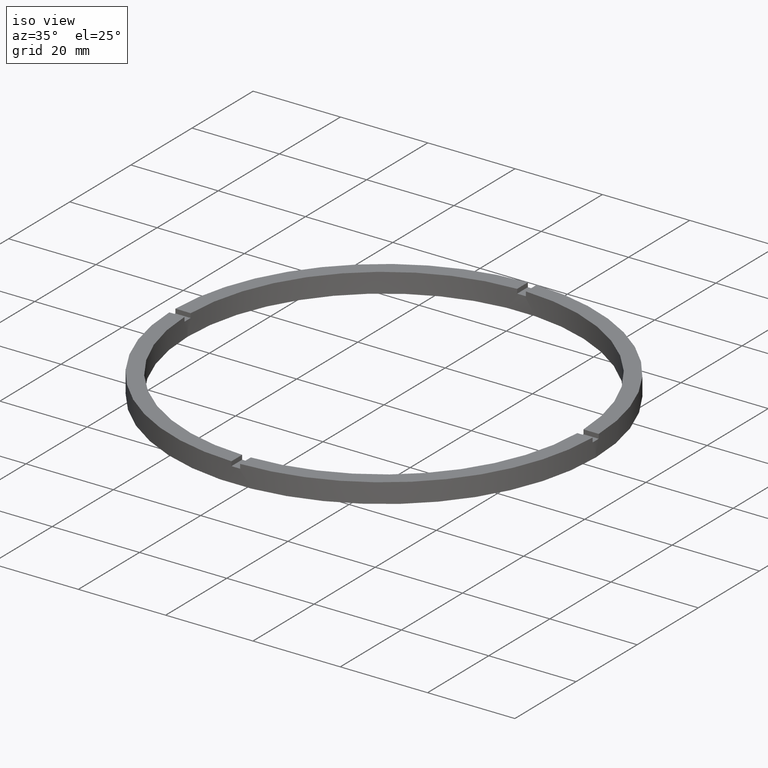
[diagram: clean part render]
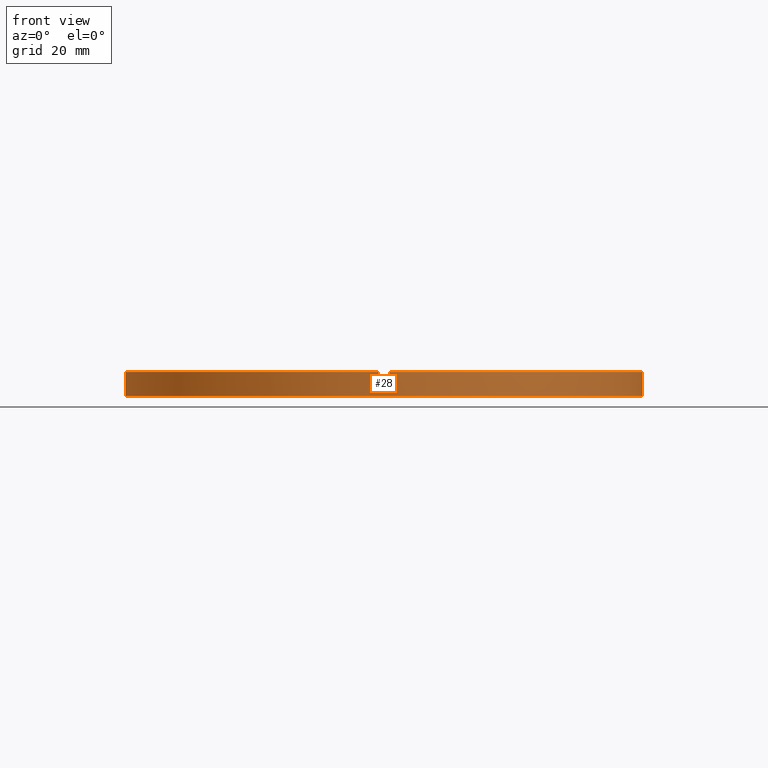
[diagram: tour spotlight — one face highlighted and labeled with its STEP entity id]
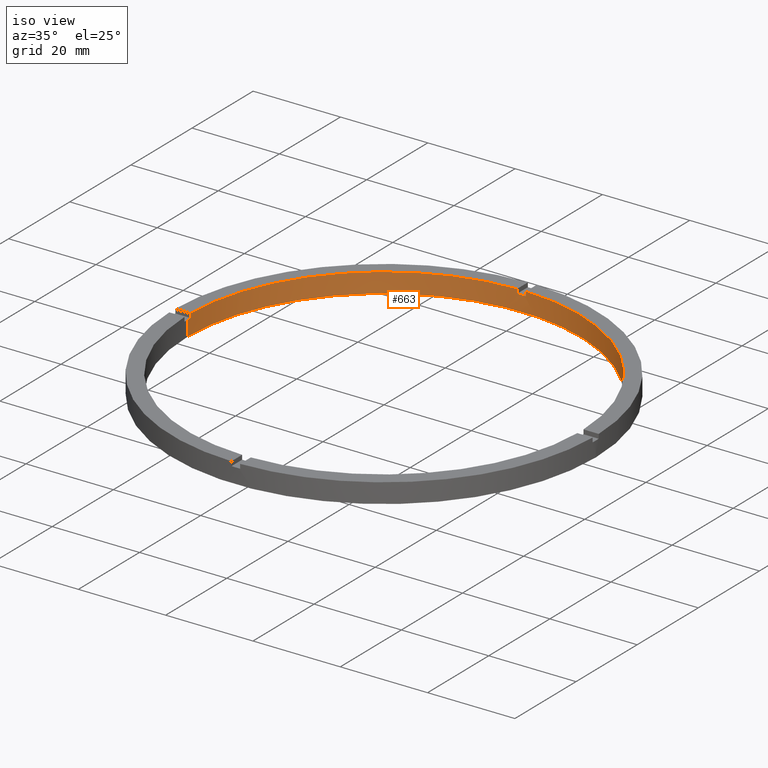
[diagram: tour spotlight — one face highlighted and labeled with its STEP entity id]
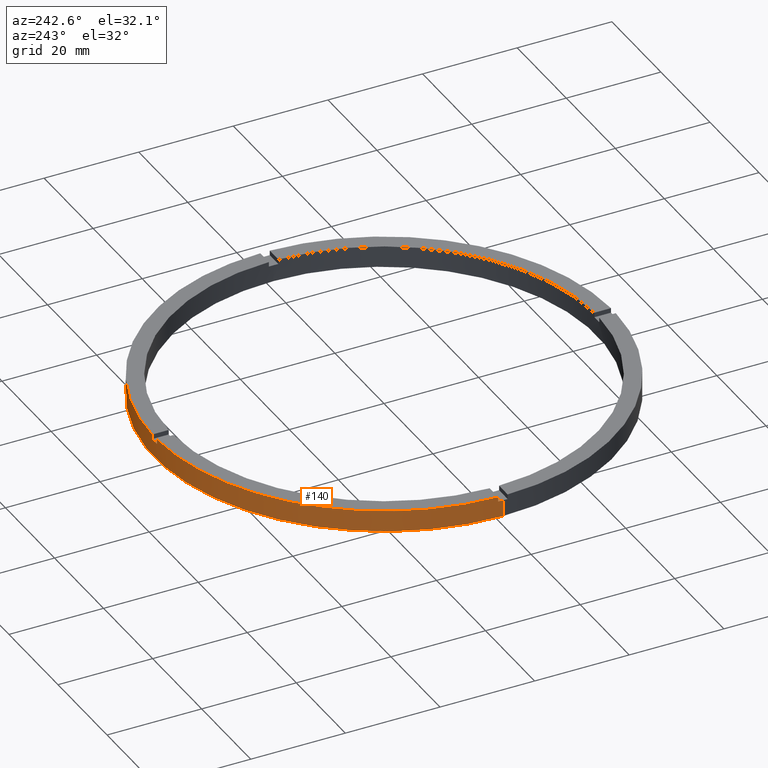
[diagram: tour spotlight — one face highlighted and labeled with its STEP entity id]
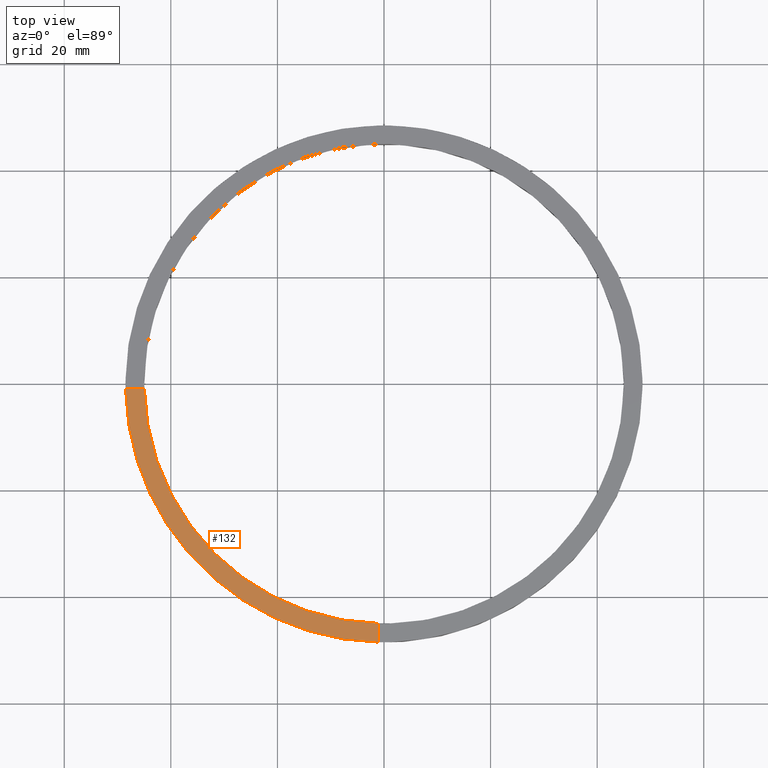
[diagram: tour spotlight — one face highlighted and labeled with its STEP entity id]
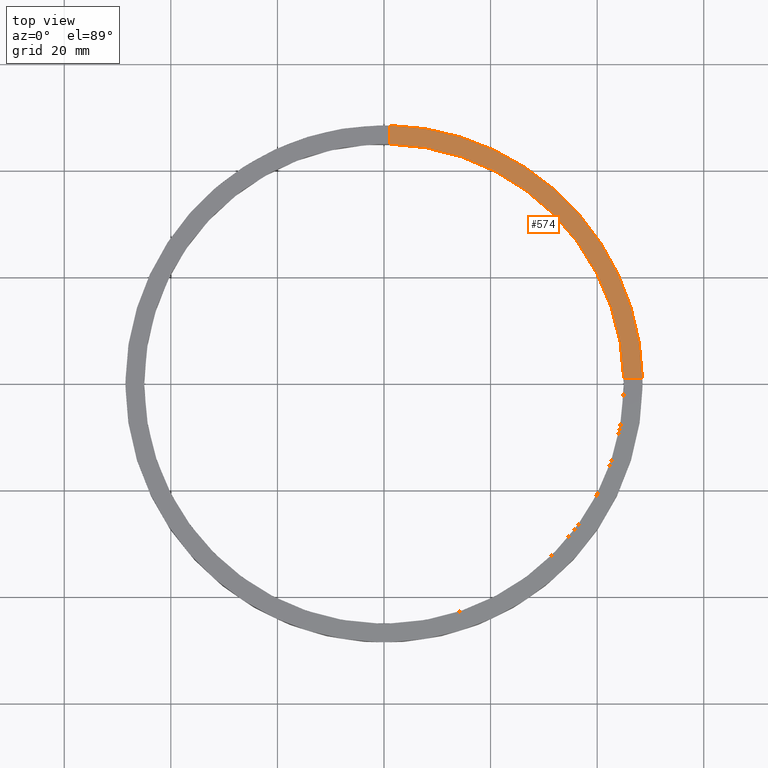
[diagram: tour spotlight — one face highlighted and labeled with its STEP entity id]
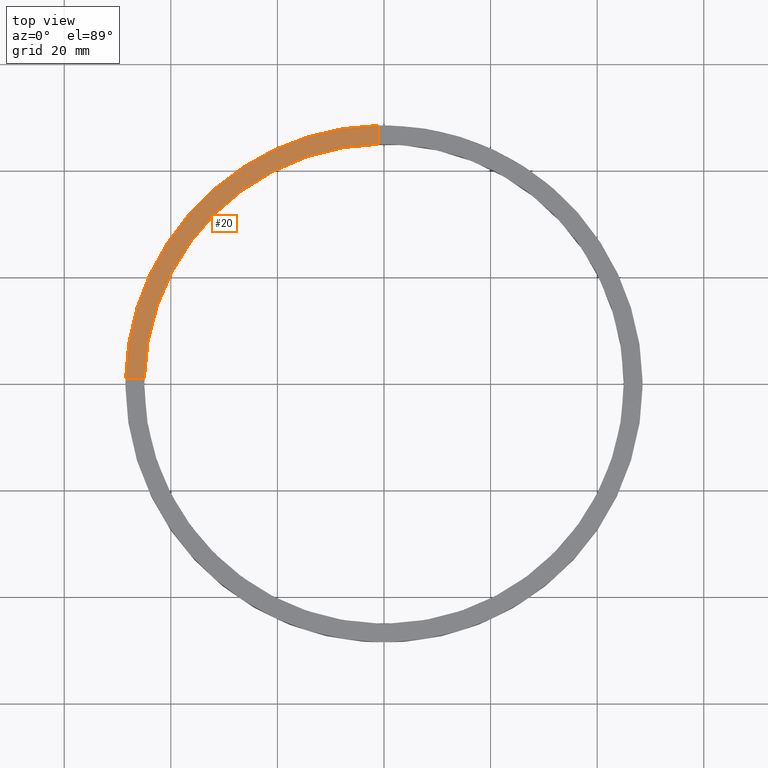
[diagram: tour spotlight — one face highlighted and labeled with its STEP entity id]
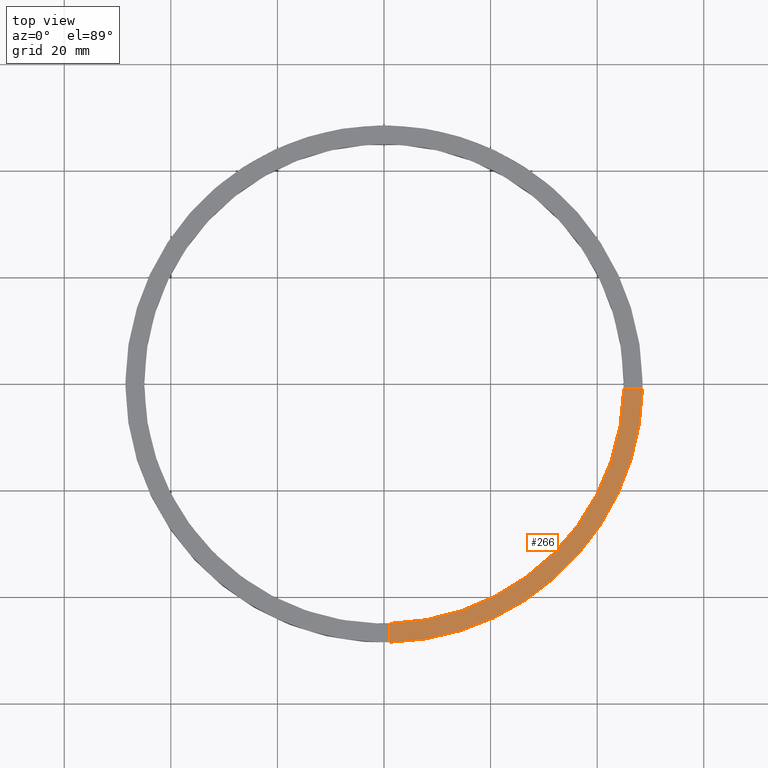
[diagram: tour spotlight — one face highlighted and labeled with its STEP entity id]
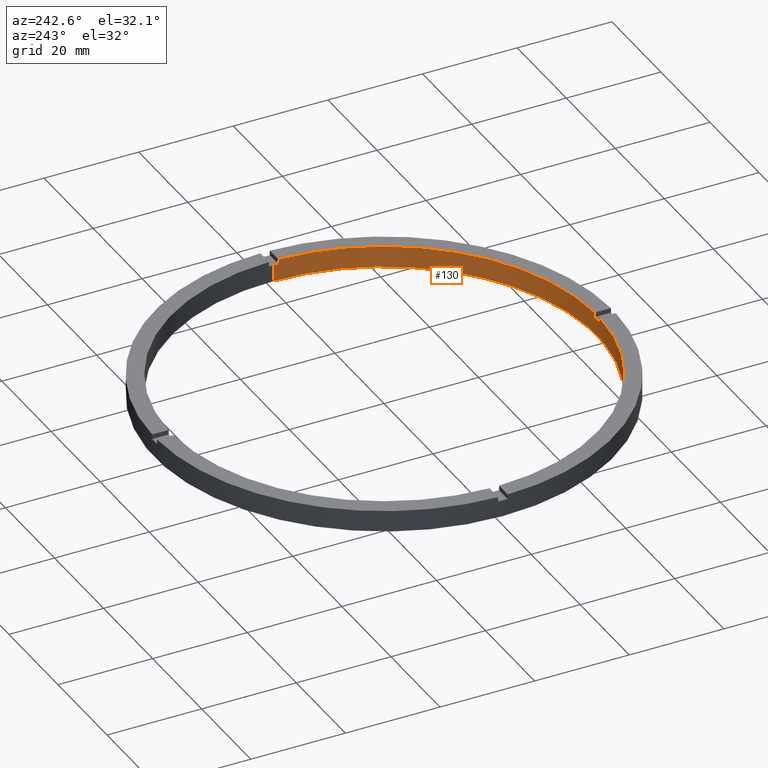
[diagram: tour spotlight — one face highlighted and labeled with its STEP entity id]
A machine part: a face-by-face anatomy tour. The part has 21 B-rep faces; the first image is the clean iso view, then the 8 largest visible faces are spotlighted one at a time (largest first), each with its STEP entity span.

Face 1 — front view, entity #28. In plain terms, the highlighted cylindrical surface (partial cylindrical patch) has radius 48.5 mm, axis along (-0, -0, -1).
Definition (entity closure, byte-faithful):
#24 = DIRECTION ( 'NONE',  ( 1.000000000000000000, 0.000000000000000000, 0.000000000000000000 ) ) ;
#28 = ADVANCED_FACE ( 'NONE', ( #464 ), #216, .T. ) ;
#30 = VERTEX_POINT ( 'NONE', #587 ) ;
#35 = CARTESIAN_POINT ( 'NONE',  ( 0.000000000000000000, 0.000000000000000000, 4.500000000000000000 ) ) ;
#40 = VERTEX_POINT ( 'NONE', #548 ) ;
#44 = EDGE_CURVE ( 'NONE', #721, #737, #728, .T. ) ;
#45 = CARTESIAN_POINT ( 'NONE',  ( 0.000000000000000000, 0.000000000000000000, 0.000000000000000000 ) ) ;
#52 = CARTESIAN_POINT ( 'NONE',  ( -48.50000000000000000, 0.000000000000000000, 4.500000000000000000 ) ) ;
#54 = CARTESIAN_POINT ( 'NONE',  ( 0.000000000000000000, 0.000000000000000000, 4.500000000000000000 ) ) ;
#62 = DIRECTION ( 'NONE',  ( 1.000000000000000000, 0.000000000000000000, 0.000000000000000000 ) ) ;
#81 = LINE ( 'NONE', #235, #614 ) ;
#89 = VECTOR ( 'NONE', #585, 1000.000000000000000 ) ;
#92 = LINE ( 'NONE', #394, #624 ) ;
#99 = CIRCLE ( 'NONE', #386, 48.50000000000000000 ) ;
#105 = CARTESIAN_POINT ( 'NONE',  ( -48.50000000000000000, 0.000000000000000000, 3.499999999999999556 ) ) ;
#117 = EDGE_CURVE ( 'NONE', #721, #170, #244, .T. ) ;
#127 = AXIS2_PLACEMENT_3D ( 'NONE', #45, #724, #24 ) ;
#128 = EDGE_CURVE ( 'NONE', #440, #30, #758, .T. ) ;
#131 = EDGE_CURVE ( 'NONE', #40, #197, #508, .T. ) ;
#134 = DIRECTION ( 'NONE',  ( 0.000000000000000000, 0.000000000000000000, 1.000000000000000000 ) ) ;
#145 = CARTESIAN_POINT ( 'NONE',  ( -48.48968962573384545, -1.000000000000031086, 3.499999999999999556 ) ) ;
#166 = CARTESIAN_POINT ( 'NONE',  ( 48.48968962573384545, -1.000000000000155431, 3.499999999999999556 ) ) ;
#170 = VERTEX_POINT ( 'NONE', #145 ) ;
#171 = CARTESIAN_POINT ( 'NONE',  ( 48.48968962573384545, -1.000000000000155431, 4.500000000000000000 ) ) ;
#197 = VERTEX_POINT ( 'NONE', #603 ) ;
#199 = EDGE_LOOP ( 'NONE', ( #284, #441, #268, #505, #736, #231, #697, #282, #512, #220, #701, #705 ) ) ;
#212 = DIRECTION ( 'NONE',  ( 0.000000000000000000, 0.000000000000000000, 1.000000000000000000 ) ) ;
#216 = CYLINDRICAL_SURFACE ( 'NONE', #281, 48.50000000000000000 ) ;
#220 = ORIENTED_EDGE ( 'NONE', *, *, #117, .F. ) ;
#222 = VECTOR ( 'NONE', #635, 1000.000000000000000 ) ;
#226 = DIRECTION ( 'NONE',  ( 1.000000000000000000, 0.000000000000000000, 0.000000000000000000 ) ) ;
#231 = ORIENTED_EDGE ( 'NONE', *, *, #131, .F. ) ;
#235 = CARTESIAN_POINT ( 'NONE',  ( -48.48968962573384545, -1.000000000000031086, 4.500000000000000000 ) ) ;
#243 = DIRECTION ( 'NONE',  ( -0.000000000000000000, -0.000000000000000000, -1.000000000000000000 ) ) ;
#244 = CIRCLE ( 'NONE', #661, 48.50000000000000000 ) ;
#263 = VECTOR ( 'NONE', #377, 1000.000000000000000 ) ;
#267 = LINE ( 'NONE', #275, #500 ) ;
#268 = ORIENTED_EDGE ( 'NONE', *, *, #327, .T. ) ;
#273 = AXIS2_PLACEMENT_3D ( 'NONE', #755, #467, #780 ) ;
#275 = CARTESIAN_POINT ( 'NONE',  ( 0.9999999999998427924, -48.48968962573384545, 4.500000000000000000 ) ) ;
#281 = AXIS2_PLACEMENT_3D ( 'NONE', #35, #320, #412 ) ;
#282 = ORIENTED_EDGE ( 'NONE', *, *, #128, .F. ) ;
#284 = ORIENTED_EDGE ( 'NONE', *, *, #623, .F. ) ;
#305 = CARTESIAN_POINT ( 'NONE',  ( 0.000000000000000000, 0.000000000000000000, 3.499999999999999556 ) ) ;
#308 = DIRECTION ( 'NONE',  ( -0.000000000000000000, -0.000000000000000000, -1.000000000000000000 ) ) ;
#312 = AXIS2_PLACEMENT_3D ( 'NONE', #431, #752, #62 ) ;
#314 = CARTESIAN_POINT ( 'NONE',  ( -48.48968962573384545, -1.000000000000031086, 4.500000000000000000 ) ) ;
#320 = DIRECTION ( 'NONE',  ( -0.000000000000000000, -0.000000000000000000, -1.000000000000000000 ) ) ;
#327 = EDGE_CURVE ( 'NONE', #424, #726, #779, .T. ) ;
#332 = CARTESIAN_POINT ( 'NONE',  ( -48.50000000000000000, 0.000000000000000000, 0.000000000000000000 ) ) ;
#341 = LINE ( 'NONE', #535, #89 ) ;
#342 = CIRCLE ( 'NONE', #273, 48.50000000000000000 ) ;
#377 = DIRECTION ( 'NONE',  ( 0.000000000000000000, 0.000000000000000000, 1.000000000000000000 ) ) ;
#378 = EDGE_CURVE ( 'NONE', #472, #197, #267, .T. ) ;
#386 = AXIS2_PLACEMENT_3D ( 'NONE', #54, #400, #226 ) ;
#394 = CARTESIAN_POINT ( 'NONE',  ( -1.000000000000157208, -48.48968962573384545, 4.500000000000000000 ) ) ;
#398 = DIRECTION ( 'NONE',  ( 1.000000000000000000, 0.000000000000000000, 0.000000000000000000 ) ) ;
#400 = DIRECTION ( 'NONE',  ( 0.000000000000000000, 0.000000000000000000, 1.000000000000000000 ) ) ;
#412 = DIRECTION ( 'NONE',  ( -1.000000000000000000, 0.000000000000000000, 0.000000000000000000 ) ) ;
#424 = VERTEX_POINT ( 'NONE', #166 ) ;
#427 = CARTESIAN_POINT ( 'NONE',  ( 48.48968962573384545, -1.000000000000155431, 4.500000000000000000 ) ) ;
#431 = CARTESIAN_POINT ( 'NONE',  ( 0.000000000000000000, 0.000000000000000000, 3.499999999999999556 ) ) ;
#440 = VERTEX_POINT ( 'NONE', #314 ) ;
#441 = ORIENTED_EDGE ( 'NONE', *, *, #494, .F. ) ;
#446 = DIRECTION ( 'NONE',  ( 0.000000000000000000, 0.000000000000000000, 1.000000000000000000 ) ) ;
#453 = EDGE_CURVE ( 'NONE', #440, #170, #81, .T. ) ;
#464 = FACE_OUTER_BOUND ( 'NONE', #199, .T. ) ;
#467 = DIRECTION ( 'NONE',  ( 0.000000000000000000, 0.000000000000000000, 1.000000000000000000 ) ) ;
#472 = VERTEX_POINT ( 'NONE', #674 ) ;
#494 = EDGE_CURVE ( 'NONE', #424, #778, #342, .T. ) ;
#500 = VECTOR ( 'NONE', #243, 1000.000000000000000 ) ;
#505 = ORIENTED_EDGE ( 'NONE', *, *, #664, .F. ) ;
#508 = CIRCLE ( 'NONE', #312, 48.50000000000000000 ) ;
#512 = ORIENTED_EDGE ( 'NONE', *, *, #453, .T. ) ;
#517 = DIRECTION ( 'NONE',  ( 1.000000000000000000, 0.000000000000000000, 0.000000000000000000 ) ) ;
#535 = CARTESIAN_POINT ( 'NONE',  ( 48.50000000000000000, 5.939536975864663363E-15, 4.500000000000000000 ) ) ;
#537 = VERTEX_POINT ( 'NONE', #588 ) ;
#548 = CARTESIAN_POINT ( 'NONE',  ( -1.000000000000157208, -48.48968962573384545, 3.499999999999999556 ) ) ;
#562 = AXIS2_PLACEMENT_3D ( 'NONE', #645, #212, #398 ) ;
#575 = CARTESIAN_POINT ( 'NONE',  ( 48.50000000000000000, 5.939536975864663363E-15, 3.499999999999999556 ) ) ;
#585 = DIRECTION ( 'NONE',  ( -0.000000000000000000, -0.000000000000000000, -1.000000000000000000 ) ) ;
#587 = CARTESIAN_POINT ( 'NONE',  ( -1.000000000000157208, -48.48968962573384545, 4.500000000000000000 ) ) ;
#588 = CARTESIAN_POINT ( 'NONE',  ( 48.50000000000000000, 5.939536975864663363E-15, 0.000000000000000000 ) ) ;
#603 = CARTESIAN_POINT ( 'NONE',  ( 0.9999999999998427924, -48.48968962573384545, 3.499999999999999556 ) ) ;
#614 = VECTOR ( 'NONE', #308, 1000.000000000000000 ) ;
#623 = EDGE_CURVE ( 'NONE', #778, #537, #341, .T. ) ;
#624 = VECTOR ( 'NONE', #446, 1000.000000000000000 ) ;
#628 = CIRCLE ( 'NONE', #127, 48.50000000000000000 ) ;
#635 = DIRECTION ( 'NONE',  ( -0.000000000000000000, -0.000000000000000000, -1.000000000000000000 ) ) ;
#638 = EDGE_CURVE ( 'NONE', #40, #30, #92, .T. ) ;
#645 = CARTESIAN_POINT ( 'NONE',  ( 0.000000000000000000, 0.000000000000000000, 4.500000000000000000 ) ) ;
#661 = AXIS2_PLACEMENT_3D ( 'NONE', #305, #134, #517 ) ;
#664 = EDGE_CURVE ( 'NONE', #472, #726, #99, .T. ) ;
#674 = CARTESIAN_POINT ( 'NONE',  ( 0.9999999999998427924, -48.48968962573384545, 4.500000000000000000 ) ) ;
#697 = ORIENTED_EDGE ( 'NONE', *, *, #638, .T. ) ;
#701 = ORIENTED_EDGE ( 'NONE', *, *, #44, .T. ) ;
#705 = ORIENTED_EDGE ( 'NONE', *, *, #765, .T. ) ;
#721 = VERTEX_POINT ( 'NONE', #105 ) ;
#724 = DIRECTION ( 'NONE',  ( 0.000000000000000000, 0.000000000000000000, 1.000000000000000000 ) ) ;
#726 = VERTEX_POINT ( 'NONE', #427 ) ;
#728 = LINE ( 'NONE', #52, #222 ) ;
#736 = ORIENTED_EDGE ( 'NONE', *, *, #378, .T. ) ;
#737 = VERTEX_POINT ( 'NONE', #332 ) ;
#752 = DIRECTION ( 'NONE',  ( -0.000000000000000000, 0.000000000000000000, 1.000000000000000000 ) ) ;
#755 = CARTESIAN_POINT ( 'NONE',  ( 0.000000000000000000, 0.000000000000000000, 3.499999999999999556 ) ) ;
#758 = CIRCLE ( 'NONE', #562, 48.50000000000000000 ) ;
#765 = EDGE_CURVE ( 'NONE', #737, #537, #628, .T. ) ;
#778 = VERTEX_POINT ( 'NONE', #575 ) ;
#779 = LINE ( 'NONE', #171, #263 ) ;
#780 = DIRECTION ( 'NONE',  ( 1.000000000000000000, 0.000000000000000000, 0.000000000000000000 ) ) ;

Face 2 — iso view, entity #663. In plain terms, the highlighted cylindrical surface (partial cylindrical patch) has radius 45 mm, axis along (-0, -0, -1).
Definition (entity closure, byte-faithful):
#2 = EDGE_CURVE ( 'NONE', #270, #714, #193, .T. ) ;
#6 = CARTESIAN_POINT ( 'NONE',  ( 0.9999999999999733546, 44.98888751680797071, 3.499999999999999556 ) ) ;
#56 = EDGE_CURVE ( 'NONE', #519, #201, #219, .T. ) ;
#63 = DIRECTION ( 'NONE',  ( 0.000000000000000000, 0.000000000000000000, 1.000000000000000000 ) ) ;
#64 = CARTESIAN_POINT ( 'NONE',  ( -44.98888751680797071, 0.9999999999999699130, 4.500000000000000000 ) ) ;
#79 = VECTOR ( 'NONE', #352, 1000.000000000000000 ) ;
#83 = CIRCLE ( 'NONE', #396, 45.00000000000000711 ) ;
#94 = CYLINDRICAL_SURFACE ( 'NONE', #681, 45.00000000000000711 ) ;
#100 = CIRCLE ( 'NONE', #662, 45.00000000000000711 ) ;
#102 = DIRECTION ( 'NONE',  ( -0.000000000000000000, -0.000000000000000000, -1.000000000000000000 ) ) ;
#112 = DIRECTION ( 'NONE',  ( 0.000000000000000000, -0.000000000000000000, 1.000000000000000000 ) ) ;
#114 = EDGE_CURVE ( 'NONE', #519, #686, #264, .T. ) ;
#115 = CARTESIAN_POINT ( 'NONE',  ( 0.000000000000000000, 0.000000000000000000, 4.500000000000000000 ) ) ;
#123 = DIRECTION ( 'NONE',  ( 0.000000000000000000, 0.000000000000000000, 1.000000000000000000 ) ) ;
#139 = CARTESIAN_POINT ( 'NONE',  ( 45.00000000000000711, 5.510910596163090344E-15, 0.000000000000000000 ) ) ;
#148 = CARTESIAN_POINT ( 'NONE',  ( 0.000000000000000000, 0.000000000000000000, 4.500000000000000000 ) ) ;
#155 = EDGE_CURVE ( 'NONE', #515, #163, #536, .T. ) ;
#156 = CARTESIAN_POINT ( 'NONE',  ( -45.00000000000000711, 0.000000000000000000, 0.000000000000000000 ) ) ;
#157 = VERTEX_POINT ( 'NONE', #295 ) ;
#163 = VERTEX_POINT ( 'NONE', #156 ) ;
#164 = EDGE_LOOP ( 'NONE', ( #486, #207, #539, #564, #734, #506, #476, #501, #745, #228, #497, #229 ) ) ;
#168 = CARTESIAN_POINT ( 'NONE',  ( -44.98888751680797071, 0.9999999999999699130, 3.499999999999999556 ) ) ;
#172 = CARTESIAN_POINT ( 'NONE',  ( -44.98888751680797071, 0.9999999999999699130, 4.500000000000000000 ) ) ;
#174 = AXIS2_PLACEMENT_3D ( 'NONE', #658, #717, #700 ) ;
#176 = VERTEX_POINT ( 'NONE', #363 ) ;
#193 = LINE ( 'NONE', #172, #706 ) ;
#201 = VERTEX_POINT ( 'NONE', #433 ) ;
#207 = ORIENTED_EDGE ( 'NONE', *, *, #599, .T. ) ;
#218 = VERTEX_POINT ( 'NONE', #6 ) ;
#219 = CIRCLE ( 'NONE', #393, 45.00000000000000711 ) ;
#228 = ORIENTED_EDGE ( 'NONE', *, *, #331, .T. ) ;
#229 = ORIENTED_EDGE ( 'NONE', *, *, #155, .F. ) ;
#251 = DIRECTION ( 'NONE',  ( 0.000000000000000000, 0.000000000000000000, 1.000000000000000000 ) ) ;
#254 = VECTOR ( 'NONE', #102, 1000.000000000000000 ) ;
#264 = LINE ( 'NONE', #741, #254 ) ;
#270 = VERTEX_POINT ( 'NONE', #168 ) ;
#272 = VERTEX_POINT ( 'NONE', #707 ) ;
#287 = AXIS2_PLACEMENT_3D ( 'NONE', #640, #685, #690 ) ;
#294 = CARTESIAN_POINT ( 'NONE',  ( -1.000000000000026645, 44.98888751680797071, 4.500000000000000000 ) ) ;
#295 = CARTESIAN_POINT ( 'NONE',  ( -1.000000000000026645, 44.98888751680797071, 3.499999999999999556 ) ) ;
#331 = EDGE_CURVE ( 'NONE', #270, #448, #754, .T. ) ;
#343 = VECTOR ( 'NONE', #538, 1000.000000000000000 ) ;
#352 = DIRECTION ( 'NONE',  ( -0.000000000000000000, -0.000000000000000000, -1.000000000000000000 ) ) ;
#353 = DIRECTION ( 'NONE',  ( -1.000000000000000000, 0.000000000000000000, 0.000000000000000000 ) ) ;
#356 = DIRECTION ( 'NONE',  ( 0.000000000000000000, 0.000000000000000000, 1.000000000000000000 ) ) ;
#358 = FACE_OUTER_BOUND ( 'NONE', #164, .T. ) ;
#360 = CARTESIAN_POINT ( 'NONE',  ( 0.000000000000000000, 0.000000000000000000, 3.499999999999999556 ) ) ;
#363 = CARTESIAN_POINT ( 'NONE',  ( 45.00000000000000711, 5.510910596163090344E-15, 3.499999999999999556 ) ) ;
#366 = EDGE_CURVE ( 'NONE', #176, #515, #498, .T. ) ;
#376 = DIRECTION ( 'NONE',  ( 1.000000000000000000, 0.000000000000000000, 0.000000000000000000 ) ) ;
#392 = CARTESIAN_POINT ( 'NONE',  ( 44.98888751680797782, 0.9999999999998441247, 3.499999999999999556 ) ) ;
#393 = AXIS2_PLACEMENT_3D ( 'NONE', #148, #402, #465 ) ;
#396 = AXIS2_PLACEMENT_3D ( 'NONE', #744, #356, #644 ) ;
#402 = DIRECTION ( 'NONE',  ( 0.000000000000000000, 0.000000000000000000, 1.000000000000000000 ) ) ;
#404 = CARTESIAN_POINT ( 'NONE',  ( -45.00000000000000711, 0.000000000000000000, 4.500000000000000000 ) ) ;
#405 = CARTESIAN_POINT ( 'NONE',  ( 0.000000000000000000, 0.000000000000000000, 4.500000000000000000 ) ) ;
#407 = EDGE_CURVE ( 'NONE', #218, #201, #530, .T. ) ;
#433 = CARTESIAN_POINT ( 'NONE',  ( 0.9999999999999733546, 44.98888751680797071, 4.500000000000000000 ) ) ;
#442 = EDGE_CURVE ( 'NONE', #272, #714, #100, .T. ) ;
#448 = VERTEX_POINT ( 'NONE', #555 ) ;
#465 = DIRECTION ( 'NONE',  ( 1.000000000000000000, 0.000000000000000000, 0.000000000000000000 ) ) ;
#470 = EDGE_CURVE ( 'NONE', #218, #157, #608, .T. ) ;
#476 = ORIENTED_EDGE ( 'NONE', *, *, #545, .F. ) ;
#486 = ORIENTED_EDGE ( 'NONE', *, *, #366, .F. ) ;
#487 = CARTESIAN_POINT ( 'NONE',  ( 0.9999999999999733546, 44.98888751680797071, 4.500000000000000000 ) ) ;
#497 = ORIENTED_EDGE ( 'NONE', *, *, #694, .T. ) ;
#498 = LINE ( 'NONE', #633, #781 ) ;
#501 = ORIENTED_EDGE ( 'NONE', *, *, #442, .T. ) ;
#506 = ORIENTED_EDGE ( 'NONE', *, *, #470, .T. ) ;
#515 = VERTEX_POINT ( 'NONE', #139 ) ;
#519 = VERTEX_POINT ( 'NONE', #698 ) ;
#530 = LINE ( 'NONE', #487, #749 ) ;
#536 = CIRCLE ( 'NONE', #287, 45.00000000000000711 ) ;
#538 = DIRECTION ( 'NONE',  ( -0.000000000000000000, -0.000000000000000000, -1.000000000000000000 ) ) ;
#539 = ORIENTED_EDGE ( 'NONE', *, *, #114, .F. ) ;
#545 = EDGE_CURVE ( 'NONE', #272, #157, #613, .T. ) ;
#555 = CARTESIAN_POINT ( 'NONE',  ( -45.00000000000000711, 0.000000000000000000, 3.499999999999999556 ) ) ;
#564 = ORIENTED_EDGE ( 'NONE', *, *, #56, .T. ) ;
#589 = DIRECTION ( 'NONE',  ( -0.000000000000000000, -0.000000000000000000, -1.000000000000000000 ) ) ;
#591 = LINE ( 'NONE', #404, #343 ) ;
#599 = EDGE_CURVE ( 'NONE', #176, #686, #83, .T. ) ;
#606 = AXIS2_PLACEMENT_3D ( 'NONE', #360, #112, #679 ) ;
#608 = CIRCLE ( 'NONE', #606, 45.00000000000000711 ) ;
#613 = LINE ( 'NONE', #294, #79 ) ;
#633 = CARTESIAN_POINT ( 'NONE',  ( 45.00000000000000711, 5.510910596163090344E-15, 4.500000000000000000 ) ) ;
#640 = CARTESIAN_POINT ( 'NONE',  ( 0.000000000000000000, 0.000000000000000000, 0.000000000000000000 ) ) ;
#644 = DIRECTION ( 'NONE',  ( 1.000000000000000000, 0.000000000000000000, 0.000000000000000000 ) ) ;
#658 = CARTESIAN_POINT ( 'NONE',  ( 0.000000000000000000, 0.000000000000000000, 3.499999999999999556 ) ) ;
#662 = AXIS2_PLACEMENT_3D ( 'NONE', #405, #63, #376 ) ;
#663 = ADVANCED_FACE ( 'NONE', ( #358 ), #94, .F. ) ;
#679 = DIRECTION ( 'NONE',  ( 1.000000000000000000, 0.000000000000000000, 0.000000000000000000 ) ) ;
#681 = AXIS2_PLACEMENT_3D ( 'NONE', #115, #589, #353 ) ;
#685 = DIRECTION ( 'NONE',  ( 0.000000000000000000, 0.000000000000000000, 1.000000000000000000 ) ) ;
#686 = VERTEX_POINT ( 'NONE', #392 ) ;
#690 = DIRECTION ( 'NONE',  ( 1.000000000000000000, 0.000000000000000000, 0.000000000000000000 ) ) ;
#694 = EDGE_CURVE ( 'NONE', #448, #163, #591, .T. ) ;
#698 = CARTESIAN_POINT ( 'NONE',  ( 44.98888751680797782, 0.9999999999998441247, 4.500000000000000000 ) ) ;
#700 = DIRECTION ( 'NONE',  ( 1.000000000000000000, 0.000000000000000000, 0.000000000000000000 ) ) ;
#706 = VECTOR ( 'NONE', #123, 1000.000000000000000 ) ;
#707 = CARTESIAN_POINT ( 'NONE',  ( -1.000000000000026645, 44.98888751680797071, 4.500000000000000000 ) ) ;
#714 = VERTEX_POINT ( 'NONE', #64 ) ;
#717 = DIRECTION ( 'NONE',  ( 0.000000000000000000, 0.000000000000000000, 1.000000000000000000 ) ) ;
#734 = ORIENTED_EDGE ( 'NONE', *, *, #407, .F. ) ;
#741 = CARTESIAN_POINT ( 'NONE',  ( 44.98888751680797782, 0.9999999999998441247, 4.500000000000000000 ) ) ;
#742 = DIRECTION ( 'NONE',  ( -0.000000000000000000, -0.000000000000000000, -1.000000000000000000 ) ) ;
#744 = CARTESIAN_POINT ( 'NONE',  ( 0.000000000000000000, 0.000000000000000000, 3.499999999999999556 ) ) ;
#745 = ORIENTED_EDGE ( 'NONE', *, *, #2, .F. ) ;
#749 = VECTOR ( 'NONE', #251, 1000.000000000000000 ) ;
#754 = CIRCLE ( 'NONE', #174, 45.00000000000000711 ) ;
#781 = VECTOR ( 'NONE', #742, 1000.000000000000000 ) ;

Face 3 — auxiliary view, entity #140. In plain terms, the highlighted cylindrical surface (partial cylindrical patch) has radius 48.5 mm, axis along (-0, -0, -1).
Definition (entity closure, byte-faithful):
#3 = ORIENTED_EDGE ( 'NONE', *, *, #677, .F. ) ;
#4 = FACE_OUTER_BOUND ( 'NONE', #158, .T. ) ;
#10 = ORIENTED_EDGE ( 'NONE', *, *, #252, .F. ) ;
#15 = DIRECTION ( 'NONE',  ( 1.000000000000000000, 0.000000000000000000, 0.000000000000000000 ) ) ;
#38 = VERTEX_POINT ( 'NONE', #395 ) ;
#44 = EDGE_CURVE ( 'NONE', #721, #737, #728, .T. ) ;
#47 = DIRECTION ( 'NONE',  ( 0.000000000000000000, 0.000000000000000000, 1.000000000000000000 ) ) ;
#49 = CARTESIAN_POINT ( 'NONE',  ( 48.48968962573384545, 0.9999999999998445688, 4.500000000000000000 ) ) ;
#50 = CARTESIAN_POINT ( 'NONE',  ( 0.000000000000000000, 0.000000000000000000, 4.500000000000000000 ) ) ;
#51 = EDGE_CURVE ( 'NONE', #692, #552, #722, .T. ) ;
#52 = CARTESIAN_POINT ( 'NONE',  ( -48.50000000000000000, 0.000000000000000000, 4.500000000000000000 ) ) ;
#65 = EDGE_CURVE ( 'NONE', #708, #552, #473, .T. ) ;
#74 = CARTESIAN_POINT ( 'NONE',  ( 48.48968962573384545, 0.9999999999998445688, 4.500000000000000000 ) ) ;
#84 = LINE ( 'NONE', #291, #357 ) ;
#89 = VECTOR ( 'NONE', #585, 1000.000000000000000 ) ;
#91 = AXIS2_PLACEMENT_3D ( 'NONE', #542, #388, #610 ) ;
#105 = CARTESIAN_POINT ( 'NONE',  ( -48.50000000000000000, 0.000000000000000000, 3.499999999999999556 ) ) ;
#110 = EDGE_CURVE ( 'NONE', #489, #454, #757, .T. ) ;
#113 = DIRECTION ( 'NONE',  ( 0.000000000000000000, 0.000000000000000000, 1.000000000000000000 ) ) ;
#140 = ADVANCED_FACE ( 'NONE', ( #4 ), #768, .T. ) ;
#143 = AXIS2_PLACEMENT_3D ( 'NONE', #144, #468, #451 ) ;
#144 = CARTESIAN_POINT ( 'NONE',  ( 0.000000000000000000, 0.000000000000000000, 4.500000000000000000 ) ) ;
#151 = EDGE_CURVE ( 'NONE', #38, #721, #248, .T. ) ;
#158 = EDGE_LOOP ( 'NONE', ( #10, #205, #739, #177, #522, #466, #3, #693, #682, #782, #459, #712 ) ) ;
#177 = ORIENTED_EDGE ( 'NONE', *, *, #44, .F. ) ;
#192 = EDGE_CURVE ( 'NONE', #38, #561, #532, .T. ) ;
#205 = ORIENTED_EDGE ( 'NONE', *, *, #623, .T. ) ;
#222 = VECTOR ( 'NONE', #635, 1000.000000000000000 ) ;
#236 = DIRECTION ( 'NONE',  ( 0.000000000000000000, 0.000000000000000000, 1.000000000000000000 ) ) ;
#237 = AXIS2_PLACEMENT_3D ( 'NONE', #259, #618, #653 ) ;
#248 = CIRCLE ( 'NONE', #650, 48.50000000000000000 ) ;
#252 = EDGE_CURVE ( 'NONE', #778, #454, #513, .T. ) ;
#257 = CIRCLE ( 'NONE', #507, 48.50000000000000000 ) ;
#259 = CARTESIAN_POINT ( 'NONE',  ( 0.000000000000000000, 0.000000000000000000, 4.500000000000000000 ) ) ;
#271 = VECTOR ( 'NONE', #113, 1000.000000000000000 ) ;
#291 = CARTESIAN_POINT ( 'NONE',  ( 0.9999999999999733546, 48.48968962573384545, 4.500000000000000000 ) ) ;
#293 = EDGE_CURVE ( 'NONE', #537, #737, #257, .T. ) ;
#296 = EDGE_CURVE ( 'NONE', #489, #689, #518, .T. ) ;
#300 = CARTESIAN_POINT ( 'NONE',  ( -1.000000000000026645, 48.48968962573384545, 4.500000000000000000 ) ) ;
#315 = DIRECTION ( 'NONE',  ( 1.000000000000000000, 0.000000000000000000, 0.000000000000000000 ) ) ;
#332 = CARTESIAN_POINT ( 'NONE',  ( -48.50000000000000000, 0.000000000000000000, 0.000000000000000000 ) ) ;
#341 = LINE ( 'NONE', #535, #89 ) ;
#350 = DIRECTION ( 'NONE',  ( -0.000000000000000000, -0.000000000000000000, -1.000000000000000000 ) ) ;
#357 = VECTOR ( 'NONE', #47, 1000.000000000000000 ) ;
#370 = DIRECTION ( 'NONE',  ( -0.000000000000000000, -0.000000000000000000, -1.000000000000000000 ) ) ;
#373 = CARTESIAN_POINT ( 'NONE',  ( 48.48968962573384545, 0.9999999999998445688, 3.499999999999999556 ) ) ;
#380 = AXIS2_PLACEMENT_3D ( 'NONE', #416, #406, #15 ) ;
#388 = DIRECTION ( 'NONE',  ( 0.000000000000000000, -0.000000000000000000, 1.000000000000000000 ) ) ;
#395 = CARTESIAN_POINT ( 'NONE',  ( -48.48968962573384545, 0.9999999999999690248, 3.499999999999999556 ) ) ;
#406 = DIRECTION ( 'NONE',  ( 0.000000000000000000, 0.000000000000000000, 1.000000000000000000 ) ) ;
#416 = CARTESIAN_POINT ( 'NONE',  ( 0.000000000000000000, 0.000000000000000000, 3.499999999999999556 ) ) ;
#417 = AXIS2_PLACEMENT_3D ( 'NONE', #50, #370, #747 ) ;
#439 = CARTESIAN_POINT ( 'NONE',  ( -48.48968962573384545, 0.9999999999999690248, 4.500000000000000000 ) ) ;
#451 = DIRECTION ( 'NONE',  ( 1.000000000000000000, 0.000000000000000000, 0.000000000000000000 ) ) ;
#454 = VERTEX_POINT ( 'NONE', #373 ) ;
#459 = ORIENTED_EDGE ( 'NONE', *, *, #296, .F. ) ;
#466 = ORIENTED_EDGE ( 'NONE', *, *, #192, .T. ) ;
#468 = DIRECTION ( 'NONE',  ( 0.000000000000000000, 0.000000000000000000, 1.000000000000000000 ) ) ;
#473 = CIRCLE ( 'NONE', #91, 48.50000000000000000 ) ;
#475 = VECTOR ( 'NONE', #639, 1000.000000000000000 ) ;
#489 = VERTEX_POINT ( 'NONE', #74 ) ;
#496 = CARTESIAN_POINT ( 'NONE',  ( 0.000000000000000000, 0.000000000000000000, 0.000000000000000000 ) ) ;
#507 = AXIS2_PLACEMENT_3D ( 'NONE', #496, #557, #565 ) ;
#513 = CIRCLE ( 'NONE', #380, 48.50000000000000000 ) ;
#518 = CIRCLE ( 'NONE', #237, 48.50000000000000000 ) ;
#522 = ORIENTED_EDGE ( 'NONE', *, *, #151, .F. ) ;
#532 = LINE ( 'NONE', #761, #271 ) ;
#535 = CARTESIAN_POINT ( 'NONE',  ( 48.50000000000000000, 5.939536975864663363E-15, 4.500000000000000000 ) ) ;
#537 = VERTEX_POINT ( 'NONE', #588 ) ;
#542 = CARTESIAN_POINT ( 'NONE',  ( 0.000000000000000000, 0.000000000000000000, 3.499999999999999556 ) ) ;
#552 = VERTEX_POINT ( 'NONE', #641 ) ;
#557 = DIRECTION ( 'NONE',  ( 0.000000000000000000, 0.000000000000000000, 1.000000000000000000 ) ) ;
#561 = VERTEX_POINT ( 'NONE', #439 ) ;
#565 = DIRECTION ( 'NONE',  ( 1.000000000000000000, 0.000000000000000000, 0.000000000000000000 ) ) ;
#575 = CARTESIAN_POINT ( 'NONE',  ( 48.50000000000000000, 5.939536975864663363E-15, 3.499999999999999556 ) ) ;
#585 = DIRECTION ( 'NONE',  ( -0.000000000000000000, -0.000000000000000000, -1.000000000000000000 ) ) ;
#588 = CARTESIAN_POINT ( 'NONE',  ( 48.50000000000000000, 5.939536975864663363E-15, 0.000000000000000000 ) ) ;
#610 = DIRECTION ( 'NONE',  ( 1.000000000000000000, 0.000000000000000000, 0.000000000000000000 ) ) ;
#612 = CARTESIAN_POINT ( 'NONE',  ( 0.000000000000000000, 0.000000000000000000, 3.499999999999999556 ) ) ;
#618 = DIRECTION ( 'NONE',  ( 0.000000000000000000, 0.000000000000000000, 1.000000000000000000 ) ) ;
#620 = CIRCLE ( 'NONE', #143, 48.50000000000000000 ) ;
#623 = EDGE_CURVE ( 'NONE', #778, #537, #341, .T. ) ;
#635 = DIRECTION ( 'NONE',  ( -0.000000000000000000, -0.000000000000000000, -1.000000000000000000 ) ) ;
#639 = DIRECTION ( 'NONE',  ( -0.000000000000000000, -0.000000000000000000, -1.000000000000000000 ) ) ;
#641 = CARTESIAN_POINT ( 'NONE',  ( -1.000000000000026645, 48.48968962573384545, 3.499999999999999556 ) ) ;
#642 = CARTESIAN_POINT ( 'NONE',  ( 0.9999999999999733546, 48.48968962573384545, 3.499999999999999556 ) ) ;
#650 = AXIS2_PLACEMENT_3D ( 'NONE', #612, #236, #315 ) ;
#653 = DIRECTION ( 'NONE',  ( 1.000000000000000000, 0.000000000000000000, 0.000000000000000000 ) ) ;
#657 = EDGE_CURVE ( 'NONE', #708, #689, #84, .T. ) ;
#668 = CARTESIAN_POINT ( 'NONE',  ( -1.000000000000026645, 48.48968962573384545, 4.500000000000000000 ) ) ;
#677 = EDGE_CURVE ( 'NONE', #692, #561, #620, .T. ) ;
#682 = ORIENTED_EDGE ( 'NONE', *, *, #65, .F. ) ;
#689 = VERTEX_POINT ( 'NONE', #770 ) ;
#692 = VERTEX_POINT ( 'NONE', #300 ) ;
#693 = ORIENTED_EDGE ( 'NONE', *, *, #51, .T. ) ;
#708 = VERTEX_POINT ( 'NONE', #642 ) ;
#712 = ORIENTED_EDGE ( 'NONE', *, *, #110, .T. ) ;
#721 = VERTEX_POINT ( 'NONE', #105 ) ;
#722 = LINE ( 'NONE', #668, #475 ) ;
#728 = LINE ( 'NONE', #52, #222 ) ;
#737 = VERTEX_POINT ( 'NONE', #332 ) ;
#739 = ORIENTED_EDGE ( 'NONE', *, *, #293, .T. ) ;
#747 = DIRECTION ( 'NONE',  ( -1.000000000000000000, 0.000000000000000000, 0.000000000000000000 ) ) ;
#757 = LINE ( 'NONE', #49, #763 ) ;
#761 = CARTESIAN_POINT ( 'NONE',  ( -48.48968962573384545, 0.9999999999999690248, 4.500000000000000000 ) ) ;
#763 = VECTOR ( 'NONE', #350, 1000.000000000000000 ) ;
#768 = CYLINDRICAL_SURFACE ( 'NONE', #417, 48.50000000000000000 ) ;
#770 = CARTESIAN_POINT ( 'NONE',  ( 0.9999999999999733546, 48.48968962573384545, 4.500000000000000000 ) ) ;
#778 = VERTEX_POINT ( 'NONE', #575 ) ;
#782 = ORIENTED_EDGE ( 'NONE', *, *, #657, .T. ) ;

Face 4 — top view, entity #132. In plain terms, the highlighted planar face has unit normal (0, 0, 1).
Definition (entity closure, byte-faithful):
#18 = ORIENTED_EDGE ( 'NONE', *, *, #604, .F. ) ;
#30 = VERTEX_POINT ( 'NONE', #587 ) ;
#66 = CARTESIAN_POINT ( 'NONE',  ( -44.98888751680797071, -1.000000000000030198, 4.500000000000000000 ) ) ;
#106 = CARTESIAN_POINT ( 'NONE',  ( -1.000000000000158540, -38.50000000000017764, 4.500000000000000000 ) ) ;
#122 = EDGE_CURVE ( 'NONE', #676, #30, #269, .T. ) ;
#128 = EDGE_CURVE ( 'NONE', #440, #30, #758, .T. ) ;
#129 = DIRECTION ( 'NONE',  ( 0.000000000000000000, 0.000000000000000000, 1.000000000000000000 ) ) ;
#132 = ADVANCED_FACE ( 'NONE', ( #242 ), #141, .T. ) ;
#136 = CARTESIAN_POINT ( 'NONE',  ( -38.50000000000018474, -1.000000000000029088, 4.500000000000000000 ) ) ;
#141 = PLANE ( 'NONE',  #746 ) ;
#212 = DIRECTION ( 'NONE',  ( 0.000000000000000000, 0.000000000000000000, 1.000000000000000000 ) ) ;
#215 = VERTEX_POINT ( 'NONE', #66 ) ;
#242 = FACE_OUTER_BOUND ( 'NONE', #253, .T. ) ;
#253 = EDGE_LOOP ( 'NONE', ( #450, #703, #18, #719 ) ) ;
#269 = LINE ( 'NONE', #106, #764 ) ;
#314 = CARTESIAN_POINT ( 'NONE',  ( -48.48968962573384545, -1.000000000000031086, 4.500000000000000000 ) ) ;
#337 = EDGE_CURVE ( 'NONE', #215, #676, #523, .T. ) ;
#348 = DIRECTION ( 'NONE',  ( 1.000000000000000000, 1.951563910473907735E-16, -0.000000000000000000 ) ) ;
#365 = VECTOR ( 'NONE', #348, 1000.000000000000000 ) ;
#368 = DIRECTION ( 'NONE',  ( 0.000000000000000000, 0.000000000000000000, 1.000000000000000000 ) ) ;
#374 = CARTESIAN_POINT ( 'NONE',  ( -1.000000000000157652, -44.98888751680797071, 4.500000000000000000 ) ) ;
#398 = DIRECTION ( 'NONE',  ( 1.000000000000000000, 0.000000000000000000, 0.000000000000000000 ) ) ;
#420 = AXIS2_PLACEMENT_3D ( 'NONE', #578, #129, #573 ) ;
#440 = VERTEX_POINT ( 'NONE', #314 ) ;
#449 = CARTESIAN_POINT ( 'NONE',  ( 0.000000000000000000, 0.000000000000000000, 4.500000000000000000 ) ) ;
#450 = ORIENTED_EDGE ( 'NONE', *, *, #122, .F. ) ;
#523 = CIRCLE ( 'NONE', #420, 45.00000000000000711 ) ;
#562 = AXIS2_PLACEMENT_3D ( 'NONE', #645, #212, #398 ) ;
#573 = DIRECTION ( 'NONE',  ( 1.000000000000000000, 0.000000000000000000, 0.000000000000000000 ) ) ;
#578 = CARTESIAN_POINT ( 'NONE',  ( 0.000000000000000000, 0.000000000000000000, 4.500000000000000000 ) ) ;
#587 = CARTESIAN_POINT ( 'NONE',  ( -1.000000000000157208, -48.48968962573384545, 4.500000000000000000 ) ) ;
#596 = DIRECTION ( 'NONE',  ( 1.000000000000000000, 0.000000000000000000, -0.000000000000000000 ) ) ;
#604 = EDGE_CURVE ( 'NONE', #440, #215, #605, .T. ) ;
#605 = LINE ( 'NONE', #136, #365 ) ;
#645 = CARTESIAN_POINT ( 'NONE',  ( 0.000000000000000000, 0.000000000000000000, 4.500000000000000000 ) ) ;
#673 = DIRECTION ( 'NONE',  ( 1.301042606982605074E-16, -1.000000000000000000, 0.000000000000000000 ) ) ;
#676 = VERTEX_POINT ( 'NONE', #374 ) ;
#703 = ORIENTED_EDGE ( 'NONE', *, *, #337, .F. ) ;
#719 = ORIENTED_EDGE ( 'NONE', *, *, #128, .T. ) ;
#746 = AXIS2_PLACEMENT_3D ( 'NONE', #449, #368, #596 ) ;
#758 = CIRCLE ( 'NONE', #562, 48.50000000000000000 ) ;
#764 = VECTOR ( 'NONE', #673, 1000.000000000000000 ) ;

Face 5 — top view, entity #574. In plain terms, the highlighted planar face has unit normal (0, 0, 1).
Definition (entity closure, byte-faithful):
#21 = EDGE_CURVE ( 'NONE', #489, #519, #469, .T. ) ;
#29 = DIRECTION ( 'NONE',  ( -1.000000000000000000, -6.505213034913025371E-17, -0.000000000000000000 ) ) ;
#56 = EDGE_CURVE ( 'NONE', #519, #201, #219, .T. ) ;
#69 = AXIS2_PLACEMENT_3D ( 'NONE', #142, #299, #760 ) ;
#74 = CARTESIAN_POINT ( 'NONE',  ( 48.48968962573384545, 0.9999999999998445688, 4.500000000000000000 ) ) ;
#85 = FACE_OUTER_BOUND ( 'NONE', #190, .T. ) ;
#142 = CARTESIAN_POINT ( 'NONE',  ( 0.000000000000000000, 0.000000000000000000, 4.500000000000000000 ) ) ;
#148 = CARTESIAN_POINT ( 'NONE',  ( 0.000000000000000000, 0.000000000000000000, 4.500000000000000000 ) ) ;
#169 = ORIENTED_EDGE ( 'NONE', *, *, #21, .F. ) ;
#190 = EDGE_LOOP ( 'NONE', ( #528, #547, #169, #208 ) ) ;
#198 = VECTOR ( 'NONE', #29, 1000.000000000000000 ) ;
#201 = VERTEX_POINT ( 'NONE', #433 ) ;
#208 = ORIENTED_EDGE ( 'NONE', *, *, #296, .T. ) ;
#219 = CIRCLE ( 'NONE', #393, 45.00000000000000711 ) ;
#237 = AXIS2_PLACEMENT_3D ( 'NONE', #259, #618, #653 ) ;
#239 = CARTESIAN_POINT ( 'NONE',  ( 0.9999999999999733546, 38.50000000000000000, 4.500000000000000000 ) ) ;
#259 = CARTESIAN_POINT ( 'NONE',  ( 0.000000000000000000, 0.000000000000000000, 4.500000000000000000 ) ) ;
#296 = EDGE_CURVE ( 'NONE', #489, #689, #518, .T. ) ;
#299 = DIRECTION ( 'NONE',  ( 0.000000000000000000, 0.000000000000000000, 1.000000000000000000 ) ) ;
#345 = LINE ( 'NONE', #239, #369 ) ;
#369 = VECTOR ( 'NONE', #399, 1000.000000000000000 ) ;
#393 = AXIS2_PLACEMENT_3D ( 'NONE', #148, #402, #465 ) ;
#399 = DIRECTION ( 'NONE',  ( 0.000000000000000000, 1.000000000000000000, 0.000000000000000000 ) ) ;
#402 = DIRECTION ( 'NONE',  ( 0.000000000000000000, 0.000000000000000000, 1.000000000000000000 ) ) ;
#426 = EDGE_CURVE ( 'NONE', #201, #689, #345, .T. ) ;
#433 = CARTESIAN_POINT ( 'NONE',  ( 0.9999999999999733546, 44.98888751680797071, 4.500000000000000000 ) ) ;
#465 = DIRECTION ( 'NONE',  ( 1.000000000000000000, 0.000000000000000000, 0.000000000000000000 ) ) ;
#469 = LINE ( 'NONE', #727, #198 ) ;
#489 = VERTEX_POINT ( 'NONE', #74 ) ;
#518 = CIRCLE ( 'NONE', #237, 48.50000000000000000 ) ;
#519 = VERTEX_POINT ( 'NONE', #698 ) ;
#528 = ORIENTED_EDGE ( 'NONE', *, *, #426, .F. ) ;
#547 = ORIENTED_EDGE ( 'NONE', *, *, #56, .F. ) ;
#574 = ADVANCED_FACE ( 'NONE', ( #85 ), #601, .T. ) ;
#601 = PLANE ( 'NONE',  #69 ) ;
#618 = DIRECTION ( 'NONE',  ( 0.000000000000000000, 0.000000000000000000, 1.000000000000000000 ) ) ;
#653 = DIRECTION ( 'NONE',  ( 1.000000000000000000, 0.000000000000000000, 0.000000000000000000 ) ) ;
#689 = VERTEX_POINT ( 'NONE', #770 ) ;
#698 = CARTESIAN_POINT ( 'NONE',  ( 44.98888751680797782, 0.9999999999998441247, 4.500000000000000000 ) ) ;
#727 = CARTESIAN_POINT ( 'NONE',  ( 38.49999999999999289, 0.9999999999998439026, 4.500000000000000000 ) ) ;
#760 = DIRECTION ( 'NONE',  ( 1.000000000000000000, 0.000000000000000000, -0.000000000000000000 ) ) ;
#770 = CARTESIAN_POINT ( 'NONE',  ( 0.9999999999999733546, 48.48968962573384545, 4.500000000000000000 ) ) ;

Face 6 — top view, entity #20. In plain terms, the highlighted planar face has unit normal (0, 0, 1).
Definition (entity closure, byte-faithful):
#20 = ADVANCED_FACE ( 'NONE', ( #457 ), #384, .T. ) ;
#63 = DIRECTION ( 'NONE',  ( 0.000000000000000000, 0.000000000000000000, 1.000000000000000000 ) ) ;
#64 = CARTESIAN_POINT ( 'NONE',  ( -44.98888751680797071, 0.9999999999999699130, 4.500000000000000000 ) ) ;
#100 = CIRCLE ( 'NONE', #662, 45.00000000000000711 ) ;
#143 = AXIS2_PLACEMENT_3D ( 'NONE', #144, #468, #451 ) ;
#144 = CARTESIAN_POINT ( 'NONE',  ( 0.000000000000000000, 0.000000000000000000, 4.500000000000000000 ) ) ;
#160 = EDGE_CURVE ( 'NONE', #692, #272, #510, .T. ) ;
#178 = ORIENTED_EDGE ( 'NONE', *, *, #677, .T. ) ;
#223 = AXIS2_PLACEMENT_3D ( 'NONE', #577, #735, #247 ) ;
#240 = VECTOR ( 'NONE', #544, 1000.000000000000000 ) ;
#247 = DIRECTION ( 'NONE',  ( 1.000000000000000000, 0.000000000000000000, -0.000000000000000000 ) ) ;
#255 = ORIENTED_EDGE ( 'NONE', *, *, #435, .F. ) ;
#272 = VERTEX_POINT ( 'NONE', #707 ) ;
#300 = CARTESIAN_POINT ( 'NONE',  ( -1.000000000000026645, 48.48968962573384545, 4.500000000000000000 ) ) ;
#361 = VECTOR ( 'NONE', #529, 1000.000000000000000 ) ;
#376 = DIRECTION ( 'NONE',  ( 1.000000000000000000, 0.000000000000000000, 0.000000000000000000 ) ) ;
#384 = PLANE ( 'NONE',  #223 ) ;
#405 = CARTESIAN_POINT ( 'NONE',  ( 0.000000000000000000, 0.000000000000000000, 4.500000000000000000 ) ) ;
#430 = ORIENTED_EDGE ( 'NONE', *, *, #160, .F. ) ;
#435 = EDGE_CURVE ( 'NONE', #714, #561, #625, .T. ) ;
#439 = CARTESIAN_POINT ( 'NONE',  ( -48.48968962573384545, 0.9999999999999690248, 4.500000000000000000 ) ) ;
#442 = EDGE_CURVE ( 'NONE', #272, #714, #100, .T. ) ;
#451 = DIRECTION ( 'NONE',  ( 1.000000000000000000, 0.000000000000000000, 0.000000000000000000 ) ) ;
#457 = FACE_OUTER_BOUND ( 'NONE', #474, .T. ) ;
#468 = DIRECTION ( 'NONE',  ( 0.000000000000000000, 0.000000000000000000, 1.000000000000000000 ) ) ;
#474 = EDGE_LOOP ( 'NONE', ( #430, #178, #255, #684 ) ) ;
#510 = LINE ( 'NONE', #649, #240 ) ;
#529 = DIRECTION ( 'NONE',  ( -1.000000000000000000, -1.951563910473907735E-16, 0.000000000000000000 ) ) ;
#544 = DIRECTION ( 'NONE',  ( -0.000000000000000000, -1.000000000000000000, -0.000000000000000000 ) ) ;
#561 = VERTEX_POINT ( 'NONE', #439 ) ;
#577 = CARTESIAN_POINT ( 'NONE',  ( 0.000000000000000000, 0.000000000000000000, 4.500000000000000000 ) ) ;
#615 = CARTESIAN_POINT ( 'NONE',  ( -38.50000000000018474, 0.9999999999999709122, 4.500000000000000000 ) ) ;
#620 = CIRCLE ( 'NONE', #143, 48.50000000000000000 ) ;
#625 = LINE ( 'NONE', #615, #361 ) ;
#649 = CARTESIAN_POINT ( 'NONE',  ( -1.000000000000026645, 38.50000000000000000, 4.500000000000000000 ) ) ;
#662 = AXIS2_PLACEMENT_3D ( 'NONE', #405, #63, #376 ) ;
#677 = EDGE_CURVE ( 'NONE', #692, #561, #620, .T. ) ;
#684 = ORIENTED_EDGE ( 'NONE', *, *, #442, .F. ) ;
#692 = VERTEX_POINT ( 'NONE', #300 ) ;
#707 = CARTESIAN_POINT ( 'NONE',  ( -1.000000000000026645, 44.98888751680797071, 4.500000000000000000 ) ) ;
#714 = VERTEX_POINT ( 'NONE', #64 ) ;
#735 = DIRECTION ( 'NONE',  ( 0.000000000000000000, 0.000000000000000000, 1.000000000000000000 ) ) ;

Face 7 — top view, entity #266. In plain terms, the highlighted planar face has unit normal (0, 0, 1).
Definition (entity closure, byte-faithful):
#9 = FACE_OUTER_BOUND ( 'NONE', #173, .T. ) ;
#54 = CARTESIAN_POINT ( 'NONE',  ( 0.000000000000000000, 0.000000000000000000, 4.500000000000000000 ) ) ;
#55 = EDGE_CURVE ( 'NONE', #422, #425, #478, .T. ) ;
#59 = CARTESIAN_POINT ( 'NONE',  ( 44.98888751680797071, -1.000000000000155875, 4.500000000000000000 ) ) ;
#87 = LINE ( 'NONE', #397, #349 ) ;
#90 = LINE ( 'NONE', #455, #602 ) ;
#99 = CIRCLE ( 'NONE', #386, 48.50000000000000000 ) ;
#126 = DIRECTION ( 'NONE',  ( 1.000000000000000000, 0.000000000000000000, -0.000000000000000000 ) ) ;
#173 = EDGE_LOOP ( 'NONE', ( #280, #195, #687, #182 ) ) ;
#182 = ORIENTED_EDGE ( 'NONE', *, *, #664, .T. ) ;
#195 = ORIENTED_EDGE ( 'NONE', *, *, #55, .F. ) ;
#209 = DIRECTION ( 'NONE',  ( 1.000000000000000000, 6.505213034913025371E-17, 0.000000000000000000 ) ) ;
#226 = DIRECTION ( 'NONE',  ( 1.000000000000000000, 0.000000000000000000, 0.000000000000000000 ) ) ;
#230 = DIRECTION ( 'NONE',  ( 0.000000000000000000, 0.000000000000000000, 1.000000000000000000 ) ) ;
#234 = CARTESIAN_POINT ( 'NONE',  ( 0.000000000000000000, 0.000000000000000000, 4.500000000000000000 ) ) ;
#266 = ADVANCED_FACE ( 'NONE', ( #9 ), #627, .T. ) ;
#280 = ORIENTED_EDGE ( 'NONE', *, *, #617, .F. ) ;
#307 = DIRECTION ( 'NONE',  ( 1.000000000000000000, 0.000000000000000000, 0.000000000000000000 ) ) ;
#349 = VECTOR ( 'NONE', #209, 1000.000000000000000 ) ;
#386 = AXIS2_PLACEMENT_3D ( 'NONE', #54, #400, #226 ) ;
#397 = CARTESIAN_POINT ( 'NONE',  ( 38.49999999999999289, -1.000000000000156097, 4.500000000000000000 ) ) ;
#400 = DIRECTION ( 'NONE',  ( 0.000000000000000000, 0.000000000000000000, 1.000000000000000000 ) ) ;
#422 = VERTEX_POINT ( 'NONE', #704 ) ;
#425 = VERTEX_POINT ( 'NONE', #59 ) ;
#427 = CARTESIAN_POINT ( 'NONE',  ( 48.48968962573384545, -1.000000000000155431, 4.500000000000000000 ) ) ;
#455 = CARTESIAN_POINT ( 'NONE',  ( 0.9999999999998414602, -38.50000000000017764, 4.500000000000000000 ) ) ;
#472 = VERTEX_POINT ( 'NONE', #674 ) ;
#478 = CIRCLE ( 'NONE', #709, 45.00000000000000711 ) ;
#493 = DIRECTION ( 'NONE',  ( 0.000000000000000000, 0.000000000000000000, 1.000000000000000000 ) ) ;
#567 = AXIS2_PLACEMENT_3D ( 'NONE', #655, #493, #126 ) ;
#602 = VECTOR ( 'NONE', #637, 1000.000000000000000 ) ;
#617 = EDGE_CURVE ( 'NONE', #425, #726, #87, .T. ) ;
#627 = PLANE ( 'NONE',  #567 ) ;
#632 = EDGE_CURVE ( 'NONE', #472, #422, #90, .T. ) ;
#637 = DIRECTION ( 'NONE',  ( -1.301042606982605074E-16, 1.000000000000000000, -0.000000000000000000 ) ) ;
#655 = CARTESIAN_POINT ( 'NONE',  ( 0.000000000000000000, 0.000000000000000000, 4.500000000000000000 ) ) ;
#664 = EDGE_CURVE ( 'NONE', #472, #726, #99, .T. ) ;
#674 = CARTESIAN_POINT ( 'NONE',  ( 0.9999999999998427924, -48.48968962573384545, 4.500000000000000000 ) ) ;
#687 = ORIENTED_EDGE ( 'NONE', *, *, #632, .F. ) ;
#704 = CARTESIAN_POINT ( 'NONE',  ( 0.9999999999998423483, -44.98888751680797782, 4.500000000000000000 ) ) ;
#709 = AXIS2_PLACEMENT_3D ( 'NONE', #234, #230, #307 ) ;
#726 = VERTEX_POINT ( 'NONE', #427 ) ;

Face 8 — auxiliary view, entity #130. In plain terms, the highlighted cylindrical surface (partial cylindrical patch) has radius 45 mm, axis along (-0, -0, -1).
Definition (entity closure, byte-faithful):
#8 = ORIENTED_EDGE ( 'NONE', *, *, #366, .T. ) ;
#13 = CARTESIAN_POINT ( 'NONE',  ( 0.9999999999998423483, -44.98888751680797782, 4.500000000000000000 ) ) ;
#14 = ORIENTED_EDGE ( 'NONE', *, *, #104, .F. ) ;
#25 = AXIS2_PLACEMENT_3D ( 'NONE', #666, #672, #750 ) ;
#33 = CARTESIAN_POINT ( 'NONE',  ( 0.000000000000000000, 0.000000000000000000, 3.499999999999999556 ) ) ;
#36 = EDGE_CURVE ( 'NONE', #232, #471, #481, .T. ) ;
#55 = EDGE_CURVE ( 'NONE', #422, #425, #478, .T. ) ;
#58 = CARTESIAN_POINT ( 'NONE',  ( 0.000000000000000000, 0.000000000000000000, 4.500000000000000000 ) ) ;
#59 = CARTESIAN_POINT ( 'NONE',  ( 44.98888751680797071, -1.000000000000155875, 4.500000000000000000 ) ) ;
#66 = CARTESIAN_POINT ( 'NONE',  ( -44.98888751680797071, -1.000000000000030198, 4.500000000000000000 ) ) ;
#80 = DIRECTION ( 'NONE',  ( -0.000000000000000000, -0.000000000000000000, -1.000000000000000000 ) ) ;
#82 = AXIS2_PLACEMENT_3D ( 'NONE', #33, #387, #738 ) ;
#95 = AXIS2_PLACEMENT_3D ( 'NONE', #582, #647, #772 ) ;
#103 = CARTESIAN_POINT ( 'NONE',  ( -1.000000000000157652, -44.98888751680797071, 4.500000000000000000 ) ) ;
#104 = EDGE_CURVE ( 'NONE', #215, #225, #213, .T. ) ;
#118 = CARTESIAN_POINT ( 'NONE',  ( 44.98888751680797071, -1.000000000000155875, 4.500000000000000000 ) ) ;
#129 = DIRECTION ( 'NONE',  ( 0.000000000000000000, 0.000000000000000000, 1.000000000000000000 ) ) ;
#130 = ADVANCED_FACE ( 'NONE', ( #502 ), #256, .F. ) ;
#135 = DIRECTION ( 'NONE',  ( 0.000000000000000000, 0.000000000000000000, 1.000000000000000000 ) ) ;
#137 = AXIS2_PLACEMENT_3D ( 'NONE', #390, #580, #766 ) ;
#139 = CARTESIAN_POINT ( 'NONE',  ( 45.00000000000000711, 5.510910596163090344E-15, 0.000000000000000000 ) ) ;
#156 = CARTESIAN_POINT ( 'NONE',  ( -45.00000000000000711, 0.000000000000000000, 0.000000000000000000 ) ) ;
#161 = EDGE_CURVE ( 'NONE', #554, #425, #516, .T. ) ;
#162 = CARTESIAN_POINT ( 'NONE',  ( -1.000000000000157652, -44.98888751680797071, 3.499999999999999556 ) ) ;
#163 = VERTEX_POINT ( 'NONE', #156 ) ;
#176 = VERTEX_POINT ( 'NONE', #363 ) ;
#181 = ORIENTED_EDGE ( 'NONE', *, *, #636, .T. ) ;
#194 = ORIENTED_EDGE ( 'NONE', *, *, #694, .F. ) ;
#203 = EDGE_CURVE ( 'NONE', #163, #515, #534, .T. ) ;
#213 = LINE ( 'NONE', #678, #725 ) ;
#215 = VERTEX_POINT ( 'NONE', #66 ) ;
#225 = VERTEX_POINT ( 'NONE', #318 ) ;
#227 = ORIENTED_EDGE ( 'NONE', *, *, #423, .F. ) ;
#230 = DIRECTION ( 'NONE',  ( 0.000000000000000000, 0.000000000000000000, 1.000000000000000000 ) ) ;
#232 = VERTEX_POINT ( 'NONE', #162 ) ;
#234 = CARTESIAN_POINT ( 'NONE',  ( 0.000000000000000000, 0.000000000000000000, 4.500000000000000000 ) ) ;
#245 = ORIENTED_EDGE ( 'NONE', *, *, #203, .F. ) ;
#256 = CYLINDRICAL_SURFACE ( 'NONE', #629, 45.00000000000000711 ) ;
#274 = LINE ( 'NONE', #103, #526 ) ;
#286 = DIRECTION ( 'NONE',  ( -1.000000000000000000, 0.000000000000000000, 0.000000000000000000 ) ) ;
#297 = DIRECTION ( 'NONE',  ( -0.000000000000000000, -0.000000000000000000, -1.000000000000000000 ) ) ;
#307 = DIRECTION ( 'NONE',  ( 1.000000000000000000, 0.000000000000000000, 0.000000000000000000 ) ) ;
#318 = CARTESIAN_POINT ( 'NONE',  ( -44.98888751680797071, -1.000000000000030198, 3.499999999999999556 ) ) ;
#336 = CIRCLE ( 'NONE', #82, 45.00000000000000711 ) ;
#337 = EDGE_CURVE ( 'NONE', #215, #676, #523, .T. ) ;
#339 = CIRCLE ( 'NONE', #25, 45.00000000000000711 ) ;
#340 = LINE ( 'NONE', #13, #354 ) ;
#343 = VECTOR ( 'NONE', #538, 1000.000000000000000 ) ;
#354 = VECTOR ( 'NONE', #80, 1000.000000000000000 ) ;
#359 = DIRECTION ( 'NONE',  ( -0.000000000000000000, -0.000000000000000000, -1.000000000000000000 ) ) ;
#363 = CARTESIAN_POINT ( 'NONE',  ( 45.00000000000000711, 5.510910596163090344E-15, 3.499999999999999556 ) ) ;
#366 = EDGE_CURVE ( 'NONE', #176, #515, #498, .T. ) ;
#374 = CARTESIAN_POINT ( 'NONE',  ( -1.000000000000157652, -44.98888751680797071, 4.500000000000000000 ) ) ;
#375 = EDGE_CURVE ( 'NONE', #232, #676, #274, .T. ) ;
#387 = DIRECTION ( 'NONE',  ( 0.000000000000000000, 0.000000000000000000, 1.000000000000000000 ) ) ;
#390 = CARTESIAN_POINT ( 'NONE',  ( 0.000000000000000000, 0.000000000000000000, 3.499999999999999556 ) ) ;
#391 = CARTESIAN_POINT ( 'NONE',  ( 44.98888751680797071, -1.000000000000155875, 3.499999999999999556 ) ) ;
#403 = CARTESIAN_POINT ( 'NONE',  ( 0.9999999999998423483, -44.98888751680797782, 3.499999999999999556 ) ) ;
#404 = CARTESIAN_POINT ( 'NONE',  ( -45.00000000000000711, 0.000000000000000000, 4.500000000000000000 ) ) ;
#420 = AXIS2_PLACEMENT_3D ( 'NONE', #578, #129, #573 ) ;
#422 = VERTEX_POINT ( 'NONE', #704 ) ;
#423 = EDGE_CURVE ( 'NONE', #422, #471, #340, .T. ) ;
#425 = VERTEX_POINT ( 'NONE', #59 ) ;
#448 = VERTEX_POINT ( 'NONE', #555 ) ;
#452 = ORIENTED_EDGE ( 'NONE', *, *, #375, .F. ) ;
#471 = VERTEX_POINT ( 'NONE', #403 ) ;
#478 = CIRCLE ( 'NONE', #709, 45.00000000000000711 ) ;
#481 = CIRCLE ( 'NONE', #137, 45.00000000000000711 ) ;
#484 = ORIENTED_EDGE ( 'NONE', *, *, #161, .F. ) ;
#490 = EDGE_LOOP ( 'NONE', ( #181, #8, #245, #194, #771, #14, #774, #452, #695, #227, #716, #484 ) ) ;
#498 = LINE ( 'NONE', #633, #781 ) ;
#502 = FACE_OUTER_BOUND ( 'NONE', #490, .T. ) ;
#511 = VECTOR ( 'NONE', #520, 1000.000000000000000 ) ;
#515 = VERTEX_POINT ( 'NONE', #139 ) ;
#516 = LINE ( 'NONE', #118, #511 ) ;
#520 = DIRECTION ( 'NONE',  ( 0.000000000000000000, 0.000000000000000000, 1.000000000000000000 ) ) ;
#523 = CIRCLE ( 'NONE', #420, 45.00000000000000711 ) ;
#526 = VECTOR ( 'NONE', #135, 1000.000000000000000 ) ;
#534 = CIRCLE ( 'NONE', #95, 45.00000000000000711 ) ;
#538 = DIRECTION ( 'NONE',  ( -0.000000000000000000, -0.000000000000000000, -1.000000000000000000 ) ) ;
#554 = VERTEX_POINT ( 'NONE', #391 ) ;
#555 = CARTESIAN_POINT ( 'NONE',  ( -45.00000000000000711, 0.000000000000000000, 3.499999999999999556 ) ) ;
#573 = DIRECTION ( 'NONE',  ( 1.000000000000000000, 0.000000000000000000, 0.000000000000000000 ) ) ;
#578 = CARTESIAN_POINT ( 'NONE',  ( 0.000000000000000000, 0.000000000000000000, 4.500000000000000000 ) ) ;
#580 = DIRECTION ( 'NONE',  ( -0.000000000000000000, 0.000000000000000000, 1.000000000000000000 ) ) ;
#582 = CARTESIAN_POINT ( 'NONE',  ( 0.000000000000000000, 0.000000000000000000, 0.000000000000000000 ) ) ;
#591 = LINE ( 'NONE', #404, #343 ) ;
#629 = AXIS2_PLACEMENT_3D ( 'NONE', #58, #359, #286 ) ;
#633 = CARTESIAN_POINT ( 'NONE',  ( 45.00000000000000711, 5.510910596163090344E-15, 4.500000000000000000 ) ) ;
#636 = EDGE_CURVE ( 'NONE', #554, #176, #339, .T. ) ;
#647 = DIRECTION ( 'NONE',  ( 0.000000000000000000, 0.000000000000000000, 1.000000000000000000 ) ) ;
#666 = CARTESIAN_POINT ( 'NONE',  ( 0.000000000000000000, 0.000000000000000000, 3.499999999999999556 ) ) ;
#672 = DIRECTION ( 'NONE',  ( 0.000000000000000000, 0.000000000000000000, 1.000000000000000000 ) ) ;
#676 = VERTEX_POINT ( 'NONE', #374 ) ;
#678 = CARTESIAN_POINT ( 'NONE',  ( -44.98888751680797071, -1.000000000000030198, 4.500000000000000000 ) ) ;
#694 = EDGE_CURVE ( 'NONE', #448, #163, #591, .T. ) ;
#695 = ORIENTED_EDGE ( 'NONE', *, *, #36, .T. ) ;
#704 = CARTESIAN_POINT ( 'NONE',  ( 0.9999999999998423483, -44.98888751680797782, 4.500000000000000000 ) ) ;
#709 = AXIS2_PLACEMENT_3D ( 'NONE', #234, #230, #307 ) ;
#715 = EDGE_CURVE ( 'NONE', #448, #225, #336, .T. ) ;
#716 = ORIENTED_EDGE ( 'NONE', *, *, #55, .T. ) ;
#725 = VECTOR ( 'NONE', #297, 1000.000000000000000 ) ;
#738 = DIRECTION ( 'NONE',  ( 1.000000000000000000, 0.000000000000000000, 0.000000000000000000 ) ) ;
#742 = DIRECTION ( 'NONE',  ( -0.000000000000000000, -0.000000000000000000, -1.000000000000000000 ) ) ;
#750 = DIRECTION ( 'NONE',  ( 1.000000000000000000, 0.000000000000000000, 0.000000000000000000 ) ) ;
#766 = DIRECTION ( 'NONE',  ( 1.000000000000000000, 0.000000000000000000, 0.000000000000000000 ) ) ;
#771 = ORIENTED_EDGE ( 'NONE', *, *, #715, .T. ) ;
#772 = DIRECTION ( 'NONE',  ( 1.000000000000000000, 0.000000000000000000, 0.000000000000000000 ) ) ;
#774 = ORIENTED_EDGE ( 'NONE', *, *, #337, .T. ) ;
#781 = VECTOR ( 'NONE', #742, 1000.000000000000000 ) ;